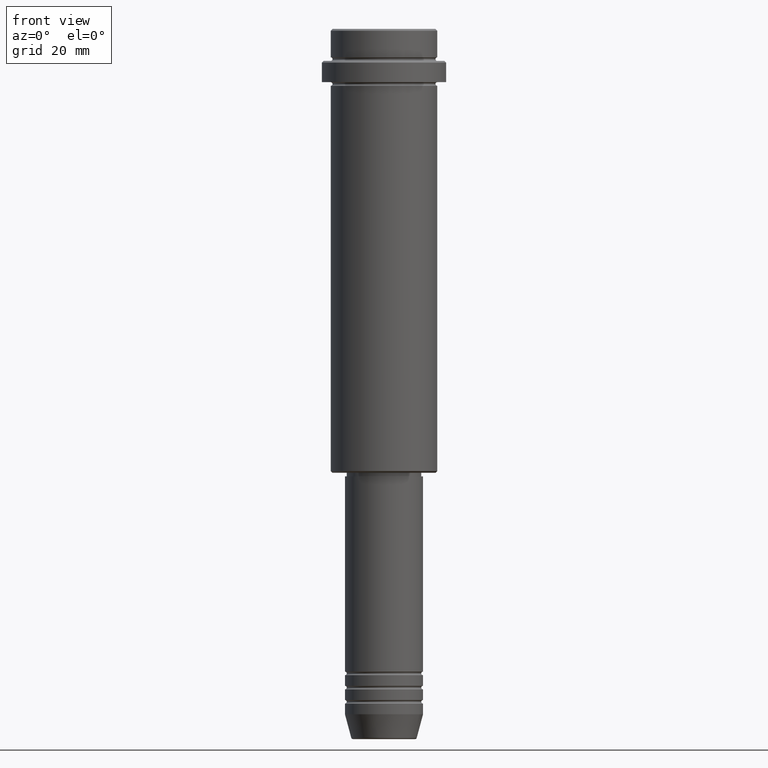
[diagram: clean part render]
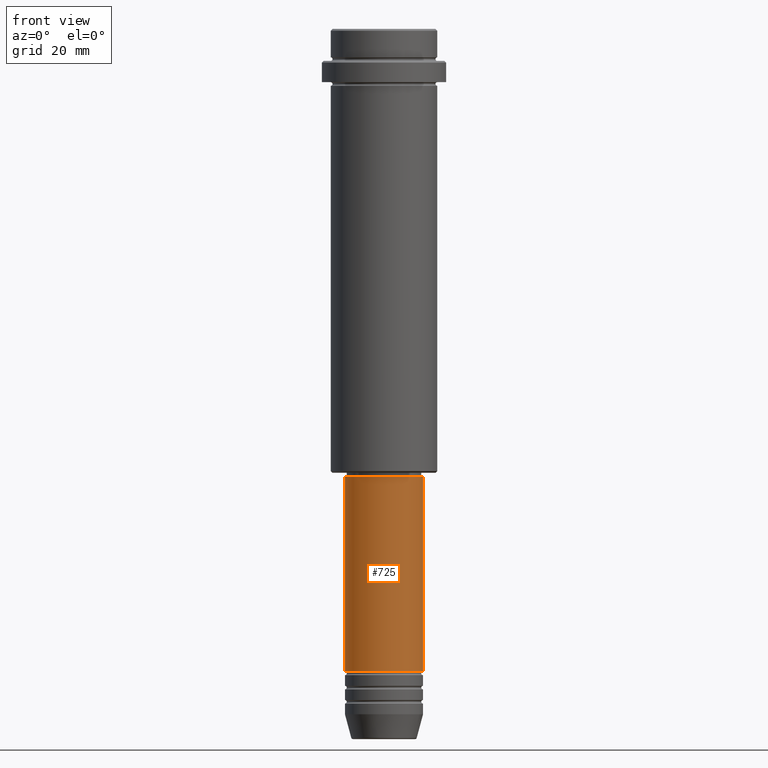
[diagram: same view with one face highlighted and labeled with its STEP entity id]
A machine part, front view. The second image highlights one B-rep face of the part: STEP entity #725.
In plain terms, the highlighted cylindrical surface (partial cylindrical patch) has radius 11 mm, axis along (-0, -0, 1).
Its self-contained STEP definition (entity closure, byte-faithful):
#23 = CARTESIAN_POINT ( 'NONE',  ( 0.000000000000000000, 0.000000000000000000, -180.9999999999998863 ) ) ;
#32 = VERTEX_POINT ( 'NONE', #1060 ) ;
#35 = DIRECTION ( 'NONE',  ( 1.000000000000000000, 0.000000000000000000, 0.000000000000000000 ) ) ;
#190 = ORIENTED_EDGE ( 'NONE', *, *, #862, .T. ) ;
#287 = LINE ( 'NONE', #947, #617 ) ;
#333 = ORIENTED_EDGE ( 'NONE', *, *, #773, .T. ) ;
#339 = DIRECTION ( 'NONE',  ( -0.000000000000000000, -0.000000000000000000, 1.000000000000000000 ) ) ;
#427 = CARTESIAN_POINT ( 'NONE',  ( 0.000000000000000000, 0.000000000000000000, -126.0000000000000000 ) ) ;
#459 = AXIS2_PLACEMENT_3D ( 'NONE', #1329, #339, #35 ) ;
#479 = ORIENTED_EDGE ( 'NONE', *, *, #566, .F. ) ;
#516 = EDGE_CURVE ( 'NONE', #844, #1033, #1412, .T. ) ;
#566 = EDGE_CURVE ( 'NONE', #32, #844, #866, .T. ) ;
#617 = VECTOR ( 'NONE', #1351, 1000.000000000000000 ) ;
#632 = CARTESIAN_POINT ( 'NONE',  ( -11.00000000000000000, 1.347111479062088405E-15, 0.000000000000000000 ) ) ;
#642 = CIRCLE ( 'NONE', #1191, 11.00000000000000000 ) ;
#654 = DIRECTION ( 'NONE',  ( 1.000000000000000000, 0.000000000000000000, 0.000000000000000000 ) ) ;
#658 = EDGE_LOOP ( 'NONE', ( #479, #333, #190, #931 ) ) ;
#671 = FACE_OUTER_BOUND ( 'NONE', #658, .T. ) ;
#725 = ADVANCED_FACE ( 'NONE', ( #671 ), #1116, .T. ) ;
#747 = DIRECTION ( 'NONE',  ( -0.000000000000000000, -0.000000000000000000, 1.000000000000000000 ) ) ;
#766 = VERTEX_POINT ( 'NONE', #1101 ) ;
#773 = EDGE_CURVE ( 'NONE', #32, #766, #642, .T. ) ;
#794 = DIRECTION ( 'NONE',  ( -0.000000000000000000, -0.000000000000000000, 1.000000000000000000 ) ) ;
#844 = VERTEX_POINT ( 'NONE', #1143 ) ;
#862 = EDGE_CURVE ( 'NONE', #766, #1033, #287, .T. ) ;
#866 = LINE ( 'NONE', #632, #1016 ) ;
#899 = AXIS2_PLACEMENT_3D ( 'NONE', #427, #1284, #654 ) ;
#931 = ORIENTED_EDGE ( 'NONE', *, *, #516, .F. ) ;
#947 = CARTESIAN_POINT ( 'NONE',  ( 11.00000000000000000, 0.000000000000000000, 0.000000000000000000 ) ) ;
#1016 = VECTOR ( 'NONE', #747, 1000.000000000000000 ) ;
#1023 = DIRECTION ( 'NONE',  ( 1.000000000000000000, 0.000000000000000000, 0.000000000000000000 ) ) ;
#1033 = VERTEX_POINT ( 'NONE', #1385 ) ;
#1060 = CARTESIAN_POINT ( 'NONE',  ( -11.00000000000000000, 1.347111479062088405E-15, -180.9999999999998863 ) ) ;
#1101 = CARTESIAN_POINT ( 'NONE',  ( 11.00000000000000000, 0.000000000000000000, -180.9999999999998863 ) ) ;
#1116 = CYLINDRICAL_SURFACE ( 'NONE', #459, 11.00000000000000000 ) ;
#1143 = CARTESIAN_POINT ( 'NONE',  ( -10.99999999999999822, 1.347111479062088207E-15, -126.0000000000000000 ) ) ;
#1191 = AXIS2_PLACEMENT_3D ( 'NONE', #23, #794, #1023 ) ;
#1284 = DIRECTION ( 'NONE',  ( -0.000000000000000000, -0.000000000000000000, 1.000000000000000000 ) ) ;
#1329 = CARTESIAN_POINT ( 'NONE',  ( 0.000000000000000000, 0.000000000000000000, 0.000000000000000000 ) ) ;
#1351 = DIRECTION ( 'NONE',  ( -0.000000000000000000, -0.000000000000000000, 1.000000000000000000 ) ) ;
#1385 = CARTESIAN_POINT ( 'NONE',  ( 10.99999999999999822, 0.000000000000000000, -126.0000000000000000 ) ) ;
#1412 = CIRCLE ( 'NONE', #899, 10.99999999999999822 ) ;